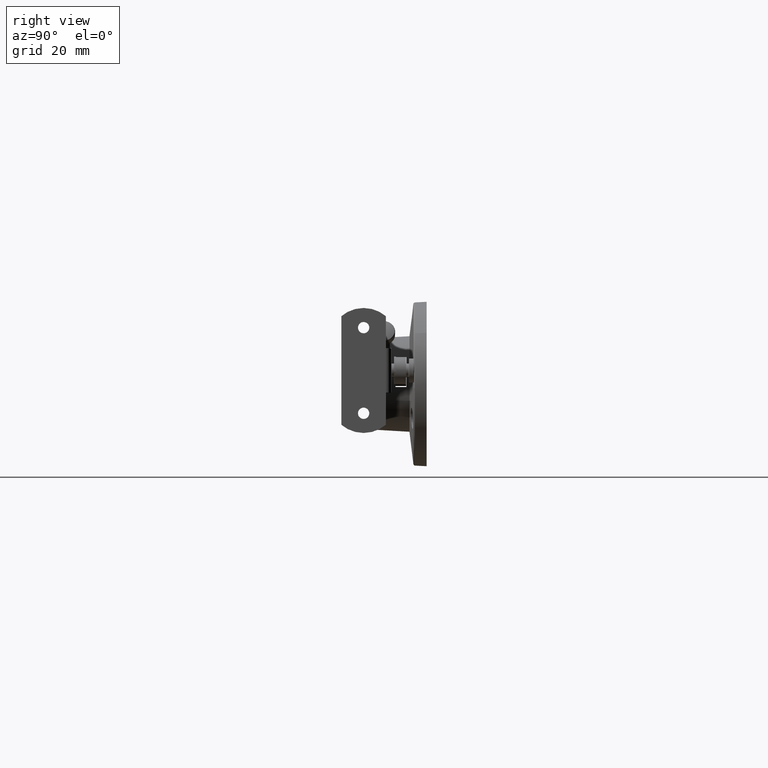
[diagram: clean part render]
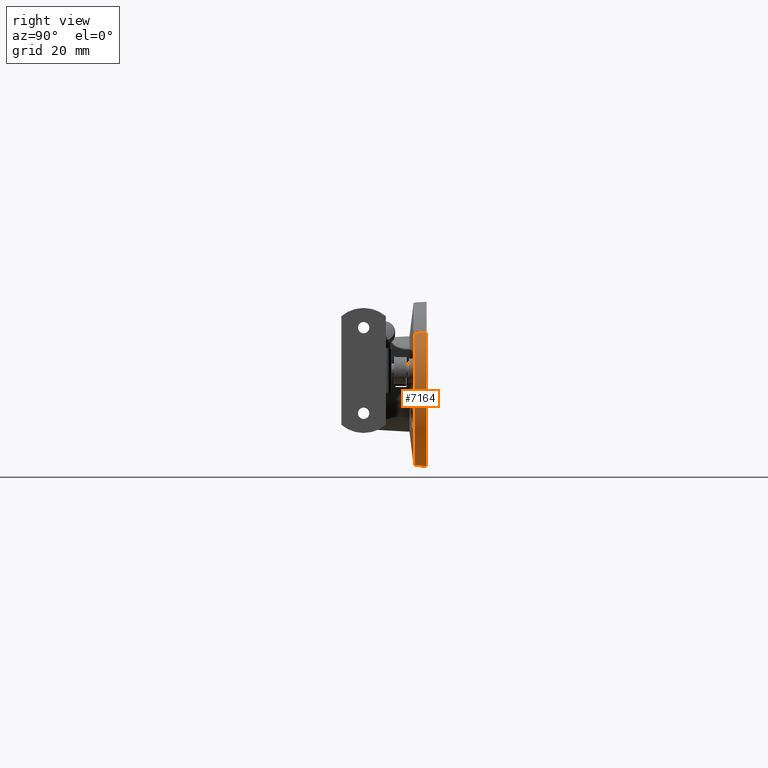
[diagram: same view with one face highlighted and labeled with its STEP entity id]
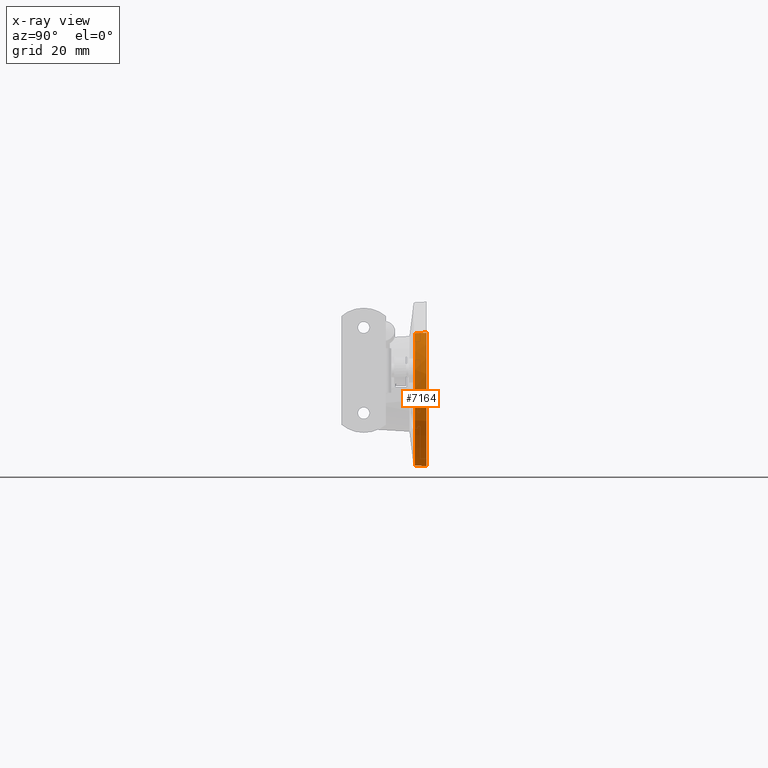
[diagram: x-ray of the same camera — body ghosted, the highlighted face saturated]
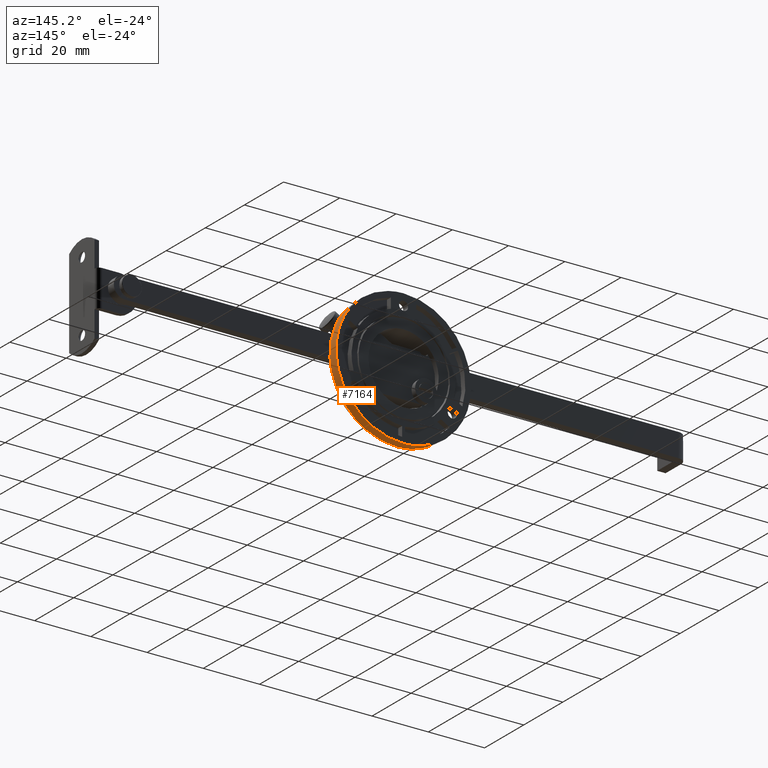
[diagram: same view with one face highlighted and labeled with its STEP entity id]
A machine part, right view. The second image highlights one B-rep face of the part: STEP entity #7164.
The next image is the same camera in x-ray: the body ghosted, the highlighted face saturated — about 0% of this face is hidden behind the body in this view.
A second angle (auxiliary view) of the same face is appended — the face is thin or edge-on in the first view.
In plain terms, the highlighted face is a freeform B-spline surface patch.
Its self-contained STEP definition (entity closure, byte-faithful):
#6652=CARTESIAN_POINT('',(18.782595927709870,2.747802E-014,14.940351409159650));
#6653=VERTEX_POINT('',#6652);
#6669=CARTESIAN_POINT('',(-1.136868E-013,0.0,-24.000000208600049));
#6670=VERTEX_POINT('',#6669);
#6671=CARTESIAN_POINT('',(-1.136868E-013,0.0,-24.000000208600049));
#6672=CARTESIAN_POINT('',(24.000000208599978,0.0,-24.000000208600049));
#6673=CARTESIAN_POINT('',(24.000000208599989,0.0,5.684342E-014));
#6674=CARTESIAN_POINT('',(24.000000208599978,0.0,8.381175274963537));
#6675=CARTESIAN_POINT('',(18.782595927709835,0.0,14.940351409159689));
#6683=(BOUNDED_CURVE()B_SPLINE_CURVE(2,(#6671,#6672,#6673,#6674,#6675),.UNSPECIFIED.,.F.,.U.)B_SPLINE_CURVE_WITH_KNOTS((3,2,3),(0.500000000000000,0.750000000000000,0.857863877391447),.UNSPECIFIED.)CURVE()GEOMETRIC_REPRESENTATION_ITEM()RATIONAL_B_SPLINE_CURVE((1.0,0.707106781186548,1.0,0.873629607028478,0.856305618644070))REPRESENTATION_ITEM(''));
#6684=EDGE_CURVE('',#6670,#6653,#6683,.T.);
#6686=CARTESIAN_POINT('',(-18.782595927710101,2.747802E-014,-14.940351409159531));
#6687=VERTEX_POINT('',#6686);
#6688=CARTESIAN_POINT('',(-18.782595927710098,2.747802E-014,-14.940351409159527));
#6689=CARTESIAN_POINT('',(-11.576225880238384,0.0,-24.000000208600046));
#6690=CARTESIAN_POINT('',(-1.136868E-013,0.0,-24.000000208600049));
#6698=(BOUNDED_CURVE()B_SPLINE_CURVE(2,(#6688,#6689,#6690),.UNSPECIFIED.,.F.,.U.)B_SPLINE_CURVE_WITH_KNOTS((3,3),(0.357863877391447,0.500000000000000),.UNSPECIFIED.)CURVE()GEOMETRIC_REPRESENTATION_ITEM()RATIONAL_B_SPLINE_CURVE((0.856305618644070,0.833477174158070,1.0))REPRESENTATION_ITEM(''));
#6699=EDGE_CURVE('',#6687,#6670,#6698,.T.);
#7083=CARTESIAN_POINT('',(18.639463950928540,-3.489775699577597,14.826499094003930));
#7084=CARTESIAN_POINT('',(33.465963044932408,-3.489775699577598,-3.812964856924725));
#7085=CARTESIAN_POINT('',(14.826499094003760,-3.489775699577597,-18.639463950928590));
#7086=CARTESIAN_POINT('',(-3.812964856924894,-3.489775699577598,-33.465963044932465));
#7087=CARTESIAN_POINT('',(-18.639463950928761,-3.489775699577597,-14.826499094003809));
#7088=CARTESIAN_POINT('',(18.786174227129489,0.087244392489440,14.943197717038430));
#7089=CARTESIAN_POINT('',(33.729371944167859,0.087244392489440,-3.842976510091182));
#7090=CARTESIAN_POINT('',(14.943197717038251,0.087244392489440,-18.786174227129550));
#7091=CARTESIAN_POINT('',(-3.842976510091352,0.087244392489440,-33.729371944167916));
#7092=CARTESIAN_POINT('',(-18.786174227129720,0.087244392489440,-14.943197717038309));
#7100=(BOUNDED_SURFACE()B_SPLINE_SURFACE(2,1,((#7083,#7088),(#7084,#7089),(#7085,#7090),(#7086,#7091),(#7087,#7092)),.UNSPECIFIED.,.F.,.F.,.U.)B_SPLINE_SURFACE_WITH_KNOTS((3,2,3),(2,2),(0.0,39.772077926084940,79.544155852169879),(0.0,3.581928979308828),.UNSPECIFIED.)GEOMETRIC_REPRESENTATION_ITEM()RATIONAL_B_SPLINE_SURFACE(((1.0,1.0),(0.707106781186548,0.707106781186548),(1.0,1.0),(0.707106781186548,0.707106781186548),(1.0,1.0)))REPRESENTATION_ITEM('')SURFACE());
#7101=CARTESIAN_POINT('',(23.791481999598080,-3.404659205954324,-1.196898526527862));
#7102=VERTEX_POINT('',#7101);
#7103=CARTESIAN_POINT('',(18.642954860039492,-3.404659205467428,14.829275888494051));
#7104=VERTEX_POINT('',#7103);
#7105=CARTESIAN_POINT('',(23.791481999598076,-3.404659205954324,-1.196898526527862));
#7106=CARTESIAN_POINT('',(23.821569683651745,-3.404659205987739,-0.598827432553679));
#7107=CARTESIAN_POINT('',(23.821569691353648,-3.404659206014205,6.137947E-009));
#7108=CARTESIAN_POINT('',(23.821569798347916,-3.404659206381858,8.318864643815159));
#7109=CARTESIAN_POINT('',(18.642954860039488,-3.404659205467428,14.829275888494058));
#7117=(BOUNDED_CURVE()B_SPLINE_CURVE(2,(#7105,#7106,#7107,#7108,#7109),.UNSPECIFIED.,.F.,.U.)B_SPLINE_CURVE_WITH_KNOTS((3,2,3),(0.741203951719923,0.750000000000000,0.857863878001178),.UNSPECIFIED.)CURVE()GEOMETRIC_REPRESENTATION_ITEM()RATIONAL_B_SPLINE_CURVE((0.980114737959633,0.989694788425639,1.0,0.873629606314134,0.856305618448212))REPRESENTATION_ITEM(''));
#7118=EDGE_CURVE('',#7102,#7104,#7117,.T.);
#7119=ORIENTED_EDGE('',*,*,#7118,.F.);
#7120=CARTESIAN_POINT('',(-1.136868E-013,-3.404659219100095,-23.821569979200049));
#7121=VERTEX_POINT('',#7120);
#7122=CARTESIAN_POINT('',(-1.136868E-013,-3.404659219100095,-23.821569979200049));
#7123=CARTESIAN_POINT('',(22.653283366039346,-3.404659212527209,-23.821569971578526));
#7124=CARTESIAN_POINT('',(23.791481999598076,-3.404659205954324,-1.196898526527862));
#7132=(BOUNDED_CURVE()B_SPLINE_CURVE(2,(#7122,#7123,#7124),.UNSPECIFIED.,.F.,.U.)B_SPLINE_CURVE_WITH_KNOTS((3,3),(0.500000000000000,0.741203951719923),.UNSPECIFIED.)CURVE()GEOMETRIC_REPRESENTATION_ITEM()RATIONAL_B_SPLINE_CURVE((1.0,0.717411992760909,0.980114737959633))REPRESENTATION_ITEM(''));
#7133=EDGE_CURVE('',#7121,#7102,#7132,.T.);
#7134=ORIENTED_EDGE('',*,*,#7133,.F.);
#7135=CARTESIAN_POINT('',(-18.642954924810699,-3.404659215073789,-14.829275940015110));
#7136=VERTEX_POINT('',#7135);
#7137=CARTESIAN_POINT('',(-18.642954924810699,-3.404659215073789,-14.829275940015107));
#7138=CARTESIAN_POINT('',(-11.490161379162652,-3.404659217758431,-23.821570002569370));
#7139=CARTESIAN_POINT('',(-1.136868E-013,-3.404659219100095,-23.821569979200049));
#7147=(BOUNDED_CURVE()B_SPLINE_CURVE(2,(#7137,#7138,#7139),.UNSPECIFIED.,.F.,.U.)B_SPLINE_CURVE_WITH_KNOTS((3,3),(0.357863876676750,0.500000000000000),.UNSPECIFIED.)CURVE()GEOMETRIC_REPRESENTATION_ITEM()RATIONAL_B_SPLINE_CURVE((0.856305618873644,0.833477173320750,1.0))REPRESENTATION_ITEM(''));
#7148=EDGE_CURVE('',#7136,#7121,#7147,.T.);
#7149=ORIENTED_EDGE('',*,*,#7148,.F.);
#7150=CARTESIAN_POINT('',(-18.642954924810699,-3.404659215073789,-14.829275940015110));
#7151=CARTESIAN_POINT('',(-18.782595927710101,2.747802E-014,-14.940351409159531));
#7152=QUASI_UNIFORM_CURVE('',1,(#7150,#7151),.UNSPECIFIED.,.F.,.U.);
#7153=EDGE_CURVE('',#7136,#6687,#7152,.T.);
#7154=ORIENTED_EDGE('',*,*,#7153,.T.);
#7155=ORIENTED_EDGE('',*,*,#6699,.T.);
#7156=ORIENTED_EDGE('',*,*,#6684,.T.);
#7157=CARTESIAN_POINT('',(18.642954860039492,-3.404659205467428,14.829275888494051));
#7158=CARTESIAN_POINT('',(18.782595927709870,2.747802E-014,14.940351409159650));
#7159=QUASI_UNIFORM_CURVE('',1,(#7157,#7158),.UNSPECIFIED.,.F.,.U.);
#7160=EDGE_CURVE('',#7104,#6653,#7159,.T.);
#7161=ORIENTED_EDGE('',*,*,#7160,.F.);
#7162=EDGE_LOOP('',(#7119,#7134,#7149,#7154,#7155,#7156,#7161));
#7163=FACE_OUTER_BOUND('',#7162,.T.);
#7164=ADVANCED_FACE('',(#7163),#7100,.T.);